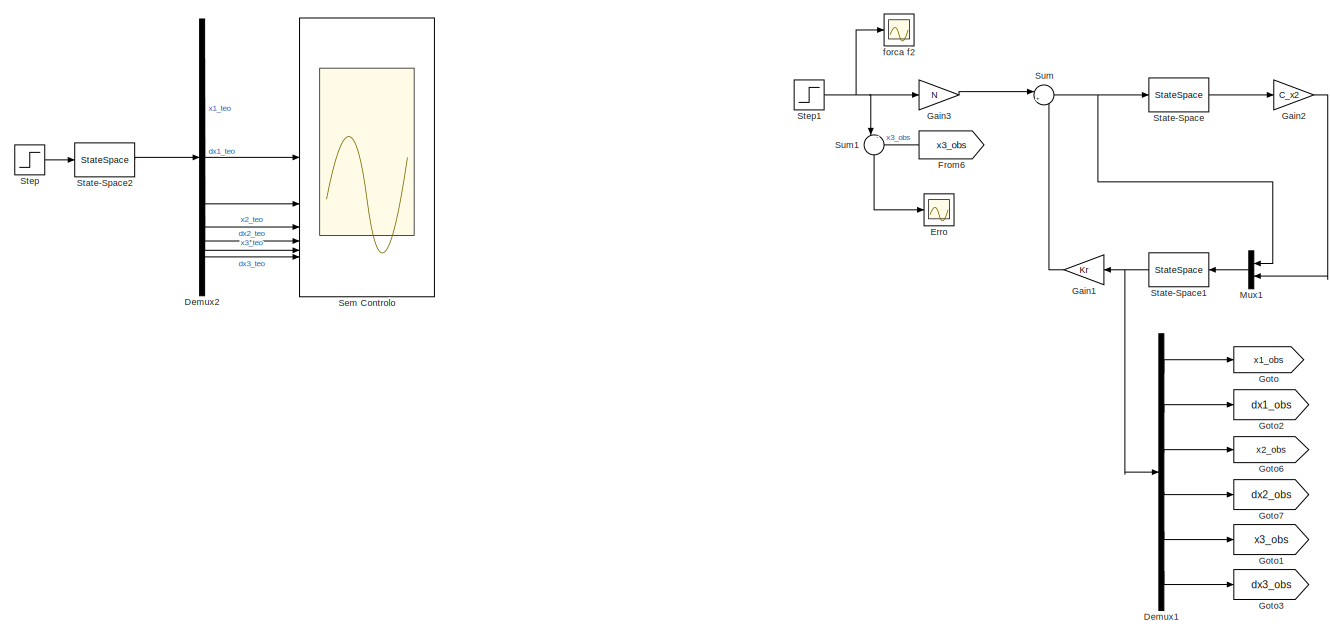
[diagram: root canvas - part 1/2, most of the canvas]
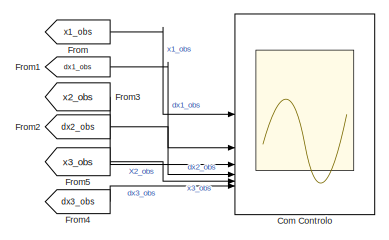
[diagram: root canvas - part 2/2, middle right region]
MODEL slx_6e9202ac064b
KIND model
CONFIG AbsTol = auto
CONFIG EnableMultiTasking = off
CONFIG FixedStep = auto
CONFIG MaxStep = auto
CONFIG MinStep = auto
CONFIG RelTol = 1e-3
CONFIG SampleTimeConstraint = Unconstrained
CONFIG SolverName = VariableStepAuto
CONFIG StartTime = 0.0
CONFIG StopTime = 30
BLOCK [Scope] Com Controlo
  Floating = off
  NumInputPorts = 6
  ScopeSpecificationString = Simulink.scopes.TimeScopeBlockCfg('CurrentConfiguration', extmgr.ConfigurationSet(extmgr.Configuration('Core','General UI',true),extmgr.Configuration('Core','Source UI',true),extmgr.Configuration('Sources','WiredSimulink',true,'DataLogging',true,'DataLoggingVariableName','Data5','DataLoggingSaveFormat','StructureWithTime'),extmgr.Configuration('Visuals','Time Domain',true,'SerializedDisplays',{str...<+3770ch>
BLOCK [Demux] Demux1
  Outputs = 6
BLOCK [Demux] Demux2
  Outputs = 6
BLOCK [Scope] Erro
  Floating = off
  NumInputPorts = 1
  ScopeSpecificationString = Simulink.scopes.TimeScopeBlockCfg('CurrentConfiguration', extmgr.ConfigurationSet(extmgr.Configuration('Core','General UI',true),extmgr.Configuration('Core','Source UI',true),extmgr.Configuration('Sources','WiredSimulink',true,'DataLoggingVariableName','erro','DataLogging',true,'DataLoggingSaveFormat','StructureWithTime'),extmgr.Configuration('Visuals','Time Domain',true,'SerializedDisplays',{stru...<+1535ch>
BLOCK [From] From
  GotoTag = x1_obs
BLOCK [From] From1
  GotoTag = dx1_obs
BLOCK [From] From2
  GotoTag = dx2_obs
BLOCK [From] From3
  GotoTag = x2_obs
BLOCK [From] From4
  GotoTag = dx3_obs
BLOCK [From] From5
  GotoTag = x3_obs
BLOCK [From] From6
  GotoTag = x3_obs
  NameLocation = top
BLOCK [Gain] Gain1
  Gain = Kr
  Multiplication = Matrix(K*u) (u vector)
  NameLocation = top
BLOCK [Gain] Gain2
  Gain = C_x2
  Multiplication = Matrix(K*u)
BLOCK [Gain] Gain3
  Gain = N
BLOCK [Goto] Goto
  GotoTag = x1_obs
BLOCK [Goto] Goto1
  GotoTag = x3_obs
BLOCK [Goto] Goto2
  GotoTag = dx1_obs
BLOCK [Goto] Goto3
  GotoTag = dx3_obs
BLOCK [Goto] Goto6
  GotoTag = x2_obs
BLOCK [Goto] Goto7
  GotoTag = dx2_obs
BLOCK [Mux] Mux1
  DisplayOption = bar
  Inputs = 2
  NameLocation = top
BLOCK [Scope] Sem Controlo
  Floating = off
  NumInputPorts = 6
  ScopeSpecificationString = Simulink.scopes.TimeScopeBlockCfg('CurrentConfiguration', extmgr.ConfigurationSet(extmgr.Configuration('Core','General UI',true),extmgr.Configuration('Core','Source UI',true),extmgr.Configuration('Sources','WiredSimulink',true,'DataLogging',true,'DataLoggingVariableName','Data5s','DataLoggingSaveFormat','StructureWithTime'),extmgr.Configuration('Visuals','Time Domain',true,'SerializedDisplays',{st...<+3754ch>
BLOCK [StateSpace] State-Space
  A = A
  B = B
  C = C
  D = D
  InitialCondition = 0
BLOCK [StateSpace] State-Space1
  A = Ao
  B = Bo
  C = Co
  D = Do
  InitialCondition = 0
  NameLocation = top
  ParameterTunability = Optimized
BLOCK [StateSpace] State-Space2
  A = A
  B = B
  C = C
  D = D
  InitialCondition = x0
BLOCK [Step] Step
  SampleTime = 0
BLOCK [Step] Step1
  SampleTime = 0
BLOCK [Sum] Sum
  Inputs = |+-
BLOCK [Sum] Sum1
  Inputs = |-+
  NameLocation = left
BLOCK [Scope] forca f2
  Floating = off
  NumInputPorts = 1
  ScopeSpecificationString = Simulink.scopes.TimeScopeBlockCfg('CurrentConfiguration', extmgr.ConfigurationSet(extmgr.Configuration('Core','General UI',true),extmgr.Configuration('Core','Source UI',true),extmgr.Configuration('Sources','WiredSimulink',true,'DataLoggingVariableName','forcaf2','DataLogging',true,'DataLoggingSaveFormat','StructureWithTime'),extmgr.Configuration('Visuals','Time Domain',true,'SerializedDisplays',{s...<+1531ch>
LINE Demux1:1 -> Goto:1
LINE Demux1:2 -> Goto2:1
LINE Demux1:3 -> Goto6:1
LINE Demux1:4 -> Goto7:1
LINE Demux1:5 -> Goto1:1
LINE Demux1:6 -> Goto3:1
LINE Demux2:1 -> Sem Controlo:1
LINE Demux2:2 -> Sem Controlo:2
LINE Demux2:3 -> Sem Controlo:3
LINE Demux2:4 -> Sem Controlo:4
LINE Demux2:5 -> Sem Controlo:5
LINE Demux2:6 -> Sem Controlo:6
LINE From1:1 -> Com Controlo:2
LINE From2:1 -> Com Controlo:4
LINE From3:1 -> Com Controlo:3
LINE From4:1 -> Com Controlo:6
LINE From5:1 -> Com Controlo:5
LINE From6:1 -> Sum1:2
LINE From:1 -> Com Controlo:1
LINE Gain1:1 -> Sum:2
LINE Gain2:1 -> Mux1:2
LINE Gain3:1 -> Sum:1
LINE Mux1:1 -> State-Space1:1
NET State-Space1:1 -> Demux1:1, Gain1:1
LINE State-Space2:1 -> Demux2:1
LINE State-Space:1 -> Gain2:1
NET Step1:1 -> Gain3:1, Sum1:1, forca f2:1
LINE Step:1 -> State-Space2:1
LINE Sum1:1 -> Erro:1
NET Sum:1 -> Mux1:1, State-Space:1
note: NET lines group one-source signal fan-out (src -> all destinations, sorted); 1:1 wires keep LINE
